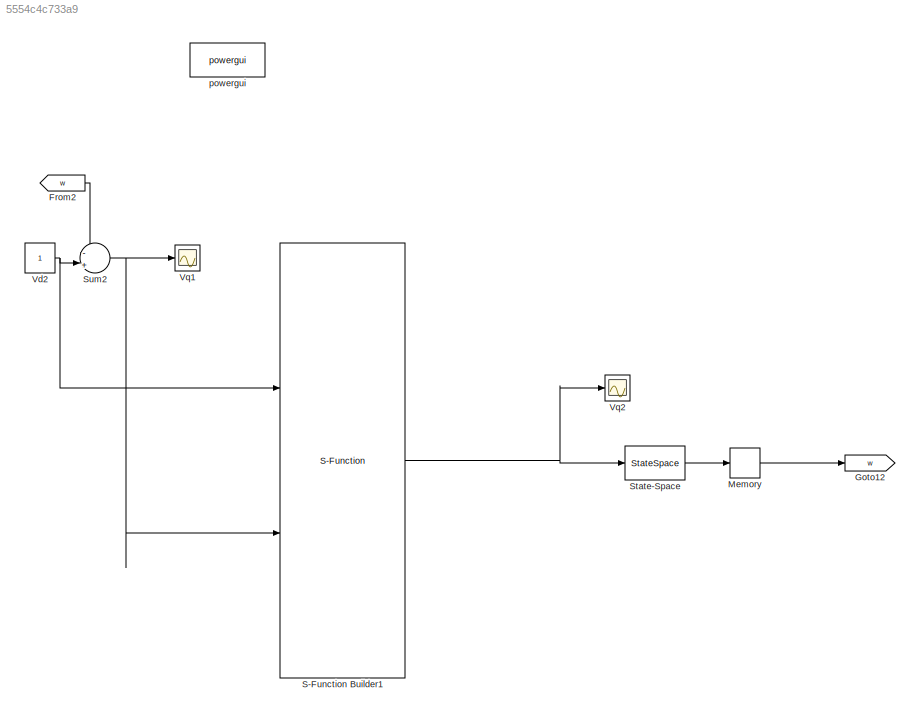
MODEL slx_5554c4c733a9
KIND model
CONFIG AbsTol = auto
CONFIG FixedStep = auto
CONFIG InitFcn = global R;\nR = 2.875;\nglobal L;\nL = 0.00153;\nSampleT = 1e-4;\nR0 = 1.5;\nL0 = 2e-3;\nBeta1 = 10000; \nBeta2 = 50000;
CONFIG MaxStep = 1e-5
CONFIG MinStep = auto
CONFIG RelTol = auto
CONFIG SampleTimeConstraint = Unconstrained
CONFIG Solver = ode23t
CONFIG SolverMode = SingleTasking
CONFIG SolverName = ode23t
CONFIG StartTime = 0.0
CONFIG StopTime = 10
BLOCK [From] From2
  GotoTag = w
BLOCK [Goto] Goto12
  GotoTag = w
BLOCK [Memory] Memory
BLOCK [S-Function] S-Function Builder1
  CopyFcn = set_param(gcbh,'LinkStatus','none')
  EnableBusSupport = off
  FunctionName = QlearningPID
  InitFcn = try, set_param(gcb,'FunctionName','QlearningPID'), end
  OpenFcn = sfunctionwizard(gcbh)
  Ports = [2, 1]
  PreSaveFcn = try, set_param(gcb,'FunctionName','QlearningPID'), end
  SFunctionDeploymentMode = off
  SFunctionModules = QlearningPID_wrapper PID RL_Brain
BLOCK [StateSpace] State-Space
  A = -3
  D = 0
  Ports = [1, 1]
  X0 = 0
BLOCK [Sum] Sum2
  IconShape = round
  InputSameDT = off
  Inputs = -|+||
  OutDataTypeStr = Inherit: Inherit via internal rule
  Ports = [2, 1]
  SaturateOnIntegerOverflow = off
BLOCK [Constant] Vd2
BLOCK [Scope] Vq1
  Ports = [1]
  ScopeSpecificationString = Simulink.scopes.TimeScopeBlockCfg('CurrentConfiguration', extmgr.ConfigurationSet(extmgr.Configuration('Core','General UI',true),extmgr.Configuration('Core','Source UI',true),extmgr.Configuration('Sources','WiredSimulink',true,'DataLoggingVariableName','ScopeData1','DataLoggingSaveFormat','Array','DataLoggingDecimation','1','DataLoggingDecimateData',true),extmgr.Configuration('Visuals','Time Domai...<+1494ch>
BLOCK [Scope] Vq2
  Ports = [1]
  ScopeSpecificationString = Simulink.scopes.TimeScopeBlockCfg('CurrentConfiguration', extmgr.ConfigurationSet(extmgr.Configuration('Core','General UI',true),extmgr.Configuration('Core','Source UI',true),extmgr.Configuration('Sources','WiredSimulink',true,'DataLoggingVariableName','ScopeData3'),extmgr.Configuration('Visuals','Time Domain',true,'SerializedDisplays',{struct('MinYLimReal','-12.24988','MaxYLimReal','0.2489','YLab...<+1454ch>
BLOCK [Reference] powergui  REF=powerlib/powergui
  Ports = []
  SourceBlock = powerlib/powergui
  SourceType = PSB option menu block
  UserDataPersistent = on
LINE From2:1 -> Sum2:1
LINE Memory:1 -> Goto12:1
NET S-Function Builder1:1 -> State-Space:1, Vq2:1
LINE State-Space:1 -> Memory:1
NET Sum2:1 -> S-Function Builder1:2, Vq1:1
NET Vd2:1 -> S-Function Builder1:1, Sum2:2
note: NET lines group one-source signal fan-out (src -> all destinations, sorted); 1:1 wires keep LINE
